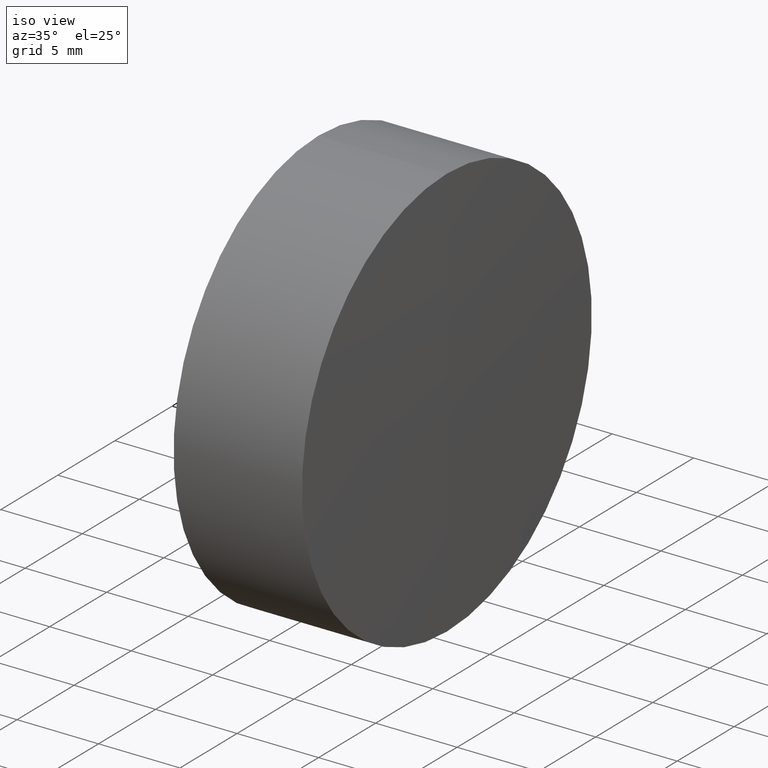
[diagram: clean part render]
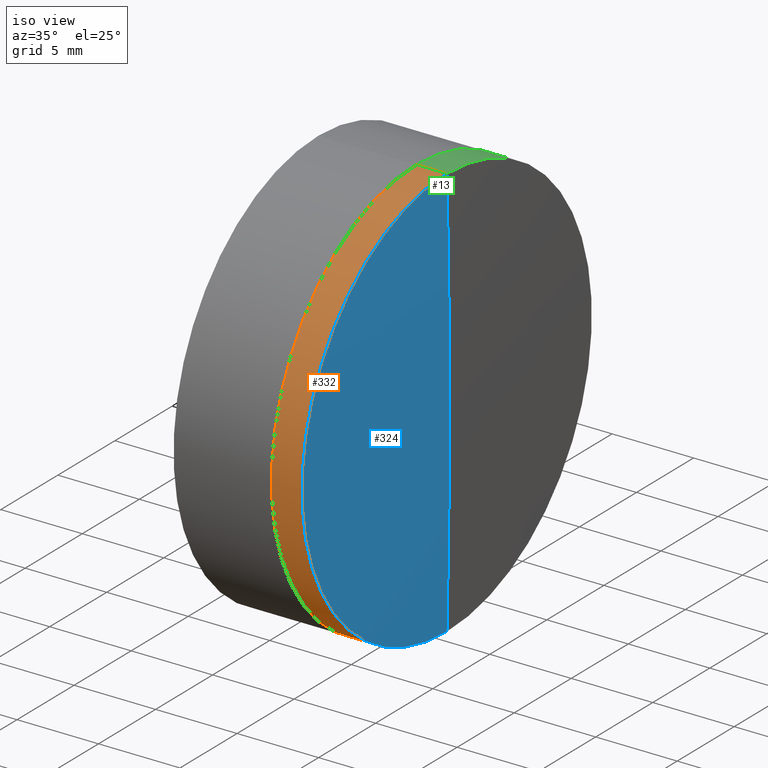
[diagram: same view with three faces highlighted in distinct colors, each labeled with its STEP entity id]
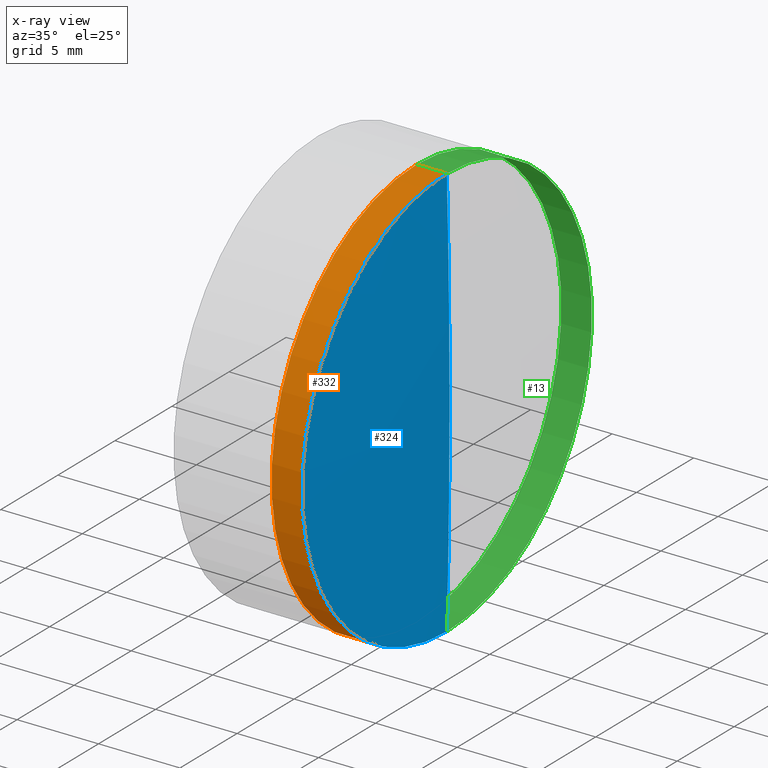
[diagram: x-ray of the same camera — body ghosted, the three highlighted faces saturated]
A machine part, iso view with three faces highlighted in distinct colors.
The next image is the same camera in x-ray (body ghosted, the three faces saturated) — at least one of them is partly hidden behind the body in this view.
Their STEP definitions:

[orange] entity #332 — the highlighted cylindrical surface (partial cylindrical patch) has radius 12.7 mm, axis along (-1, -0, -0).
#4 = CARTESIAN_POINT ( 'NONE',  ( 150.5048937077423800, 0.0000000000000000000, 12.69999999999996900 ) ) ;
#19 = VERTEX_POINT ( 'NONE', #115 ) ;
#46 = CIRCLE ( 'NONE', #52, 12.69999999999997100 ) ;
#48 = DIRECTION ( 'NONE',  ( -1.000000000000000000, -0.0000000000000000000, -0.0000000000000000000 ) ) ;
#52 = AXIS2_PLACEMENT_3D ( 'NONE', #57, #86, #295 ) ;
#57 = CARTESIAN_POINT ( 'NONE',  ( 150.5048937077423800, 0.0000000000000000000, 0.0000000000000000000 ) ) ;
#73 = LINE ( 'NONE', #152, #190 ) ;
#76 = CARTESIAN_POINT ( 'NONE',  ( 152.3694498868020200, 0.0000000000000000000, 0.0000000000000000000 ) ) ;
#86 = DIRECTION ( 'NONE',  ( -1.000000000000000000, -0.0000000000000000000, -0.0000000000000000000 ) ) ;
#100 = DIRECTION ( 'NONE',  ( -1.000000000000000000, -0.0000000000000000000, -0.0000000000000000000 ) ) ;
#101 = ORIENTED_EDGE ( 'NONE', *, *, #123, .F. ) ;
#108 = ORIENTED_EDGE ( 'NONE', *, *, #197, .T. ) ;
#115 = CARTESIAN_POINT ( 'NONE',  ( 152.3694498868020200, 0.0000000000000000000, 12.69999999999993700 ) ) ;
#121 = ORIENTED_EDGE ( 'NONE', *, *, #322, .F. ) ;
#123 = EDGE_CURVE ( 'NONE', #213, #146, #46, .T. ) ;
#125 = CARTESIAN_POINT ( 'NONE',  ( 144.4937671120052900, 0.0000000000000000000, 0.0000000000000000000 ) ) ;
#126 = CARTESIAN_POINT ( 'NONE',  ( 150.5048937077423800, 1.555301434917134700E-015, -12.70000000000002800 ) ) ;
#130 = VECTOR ( 'NONE', #290, 1000.000000000000000 ) ;
#139 = VERTEX_POINT ( 'NONE', #163 ) ;
#140 = LINE ( 'NONE', #180, #130 ) ;
#143 = DIRECTION ( 'NONE',  ( -1.000000000000000000, -0.0000000000000000000, -0.0000000000000000000 ) ) ;
#146 = VERTEX_POINT ( 'NONE', #4 ) ;
#147 = AXIS2_PLACEMENT_3D ( 'NONE', #76, #100, #278 ) ;
#152 = CARTESIAN_POINT ( 'NONE',  ( 144.4937671120052900, 0.0000000000000000000, 12.69999999999995500 ) ) ;
#163 = CARTESIAN_POINT ( 'NONE',  ( 152.3694498868020200, 1.555301434917131900E-015, -12.69999999999993700 ) ) ;
#168 = EDGE_CURVE ( 'NONE', #139, #19, #340, .T. ) ;
#180 = CARTESIAN_POINT ( 'NONE',  ( 144.4937671120052900, 1.555301434917132900E-015, -12.69999999999995500 ) ) ;
#182 = FACE_OUTER_BOUND ( 'NONE', #264, .T. ) ;
#190 = VECTOR ( 'NONE', #48, 1000.000000000000000 ) ;
#197 = EDGE_CURVE ( 'NONE', #19, #146, #73, .T. ) ;
#213 = VERTEX_POINT ( 'NONE', #126 ) ;
#254 = CYLINDRICAL_SURFACE ( 'NONE', #261, 12.69999999999995500 ) ;
#259 = ORIENTED_EDGE ( 'NONE', *, *, #168, .T. ) ;
#261 = AXIS2_PLACEMENT_3D ( 'NONE', #125, #143, #342 ) ;
#264 = EDGE_LOOP ( 'NONE', ( #121, #259, #108, #101 ) ) ;
#278 = DIRECTION ( 'NONE',  ( 0.0000000000000000000, 0.0000000000000000000, 1.000000000000000000 ) ) ;
#290 = DIRECTION ( 'NONE',  ( -1.000000000000000000, -0.0000000000000000000, -0.0000000000000000000 ) ) ;
#295 = DIRECTION ( 'NONE',  ( 0.0000000000000000000, 0.0000000000000000000, 1.000000000000000000 ) ) ;
#322 = EDGE_CURVE ( 'NONE', #139, #213, #140, .T. ) ;
#332 = ADVANCED_FACE ( 'NONE', ( #182 ), #254, .T. ) ;
#340 = CIRCLE ( 'NONE', #147, 12.69999999999993700 ) ;
#342 = DIRECTION ( 'NONE',  ( 0.0000000000000000000, 0.0000000000000000000, 1.000000000000000000 ) ) ;

[blue] entity #324 — the highlighted spherical surface has radius 494.3 mm.
#5 = EDGE_CURVE ( 'NONE', #44, #139, #275, .T. ) ;
#19 = VERTEX_POINT ( 'NONE', #115 ) ;
#26 = AXIS2_PLACEMENT_3D ( 'NONE', #280, #79, #260 ) ;
#39 = DIRECTION ( 'NONE',  ( 0.0000000000000000000, -1.224646799147353200E-016, 1.000000000000000000 ) ) ;
#44 = VERTEX_POINT ( 'NONE', #329 ) ;
#76 = CARTESIAN_POINT ( 'NONE',  ( 152.3694498868020200, 0.0000000000000000000, 0.0000000000000000000 ) ) ;
#77 = DIRECTION ( 'NONE',  ( 0.0000000000000000000, 0.0000000000000000000, 1.000000000000000000 ) ) ;
#79 = DIRECTION ( 'NONE',  ( 0.0000000000000000000, -1.000000000000000000, 0.0000000000000000000 ) ) ;
#84 = SPHERICAL_SURFACE ( 'NONE', #338, 494.2999999999999500 ) ;
#90 = AXIS2_PLACEMENT_3D ( 'NONE', #170, #116, #39 ) ;
#100 = DIRECTION ( 'NONE',  ( -1.000000000000000000, -0.0000000000000000000, -0.0000000000000000000 ) ) ;
#104 = ORIENTED_EDGE ( 'NONE', *, *, #164, .T. ) ;
#112 = ORIENTED_EDGE ( 'NONE', *, *, #5, .F. ) ;
#115 = CARTESIAN_POINT ( 'NONE',  ( 152.3694498868020200, 0.0000000000000000000, 12.69999999999993700 ) ) ;
#116 = DIRECTION ( 'NONE',  ( -0.0000000000000000000, 1.000000000000000000, 1.224646799147353200E-016 ) ) ;
#120 = CIRCLE ( 'NONE', #26, 494.2999999999999500 ) ;
#124 = CARTESIAN_POINT ( 'NONE',  ( -341.7673732705093200, 0.0000000000000000000, 0.0000000000000000000 ) ) ;
#139 = VERTEX_POINT ( 'NONE', #163 ) ;
#147 = AXIS2_PLACEMENT_3D ( 'NONE', #76, #100, #278 ) ;
#163 = CARTESIAN_POINT ( 'NONE',  ( 152.3694498868020200, 1.555301434917131900E-015, -12.69999999999993700 ) ) ;
#164 = EDGE_CURVE ( 'NONE', #44, #19, #120, .T. ) ;
#168 = EDGE_CURVE ( 'NONE', #139, #19, #340, .T. ) ;
#170 = CARTESIAN_POINT ( 'NONE',  ( -341.7673732705093200, 0.0000000000000000000, 0.0000000000000000000 ) ) ;
#201 = ORIENTED_EDGE ( 'NONE', *, *, #168, .F. ) ;
#212 = DIRECTION ( 'NONE',  ( 0.0000000000000000000, 1.000000000000000000, 0.0000000000000000000 ) ) ;
#231 = FACE_OUTER_BOUND ( 'NONE', #303, .T. ) ;
#260 = DIRECTION ( 'NONE',  ( 0.0000000000000000000, 0.0000000000000000000, -1.000000000000000000 ) ) ;
#275 = CIRCLE ( 'NONE', #90, 494.2999999999999500 ) ;
#278 = DIRECTION ( 'NONE',  ( 0.0000000000000000000, 0.0000000000000000000, 1.000000000000000000 ) ) ;
#280 = CARTESIAN_POINT ( 'NONE',  ( -341.7673732705093200, 0.0000000000000000000, 0.0000000000000000000 ) ) ;
#303 = EDGE_LOOP ( 'NONE', ( #112, #104, #201 ) ) ;
#324 = ADVANCED_FACE ( 'NONE', ( #231 ), #84, .T. ) ;
#329 = CARTESIAN_POINT ( 'NONE',  ( 152.5326267294906300, 0.0000000000000000000, 3.026714564092683200E-014 ) ) ;
#338 = AXIS2_PLACEMENT_3D ( 'NONE', #124, #212, #77 ) ;
#340 = CIRCLE ( 'NONE', #147, 12.69999999999993700 ) ;

[green] entity #13 — the highlighted cylindrical surface (partial cylindrical patch) has radius 12.7 mm, axis along (-1, -0, -0).
#3 = AXIS2_PLACEMENT_3D ( 'NONE', #50, #74, #339 ) ;
#4 = CARTESIAN_POINT ( 'NONE',  ( 150.5048937077423800, 0.0000000000000000000, 12.69999999999996900 ) ) ;
#10 = CARTESIAN_POINT ( 'NONE',  ( 144.4937671120052900, 0.0000000000000000000, 0.0000000000000000000 ) ) ;
#13 = ADVANCED_FACE ( 'NONE', ( #42 ), #155, .T. ) ;
#19 = VERTEX_POINT ( 'NONE', #115 ) ;
#32 = AXIS2_PLACEMENT_3D ( 'NONE', #10, #289, #61 ) ;
#42 = FACE_OUTER_BOUND ( 'NONE', #211, .T. ) ;
#48 = DIRECTION ( 'NONE',  ( -1.000000000000000000, -0.0000000000000000000, -0.0000000000000000000 ) ) ;
#50 = CARTESIAN_POINT ( 'NONE',  ( 150.5048937077423800, 0.0000000000000000000, 0.0000000000000000000 ) ) ;
#53 = ORIENTED_EDGE ( 'NONE', *, *, #83, .T. ) ;
#61 = DIRECTION ( 'NONE',  ( 0.0000000000000000000, 0.0000000000000000000, 1.000000000000000000 ) ) ;
#70 = ORIENTED_EDGE ( 'NONE', *, *, #322, .T. ) ;
#73 = LINE ( 'NONE', #152, #190 ) ;
#74 = DIRECTION ( 'NONE',  ( -1.000000000000000000, -0.0000000000000000000, -0.0000000000000000000 ) ) ;
#82 = DIRECTION ( 'NONE',  ( -1.000000000000000000, -0.0000000000000000000, -0.0000000000000000000 ) ) ;
#83 = EDGE_CURVE ( 'NONE', #19, #139, #277, .T. ) ;
#107 = DIRECTION ( 'NONE',  ( 0.0000000000000000000, 0.0000000000000000000, 1.000000000000000000 ) ) ;
#115 = CARTESIAN_POINT ( 'NONE',  ( 152.3694498868020200, 0.0000000000000000000, 12.69999999999993700 ) ) ;
#126 = CARTESIAN_POINT ( 'NONE',  ( 150.5048937077423800, 1.555301434917134700E-015, -12.70000000000002800 ) ) ;
#130 = VECTOR ( 'NONE', #290, 1000.000000000000000 ) ;
#139 = VERTEX_POINT ( 'NONE', #163 ) ;
#140 = LINE ( 'NONE', #180, #130 ) ;
#146 = VERTEX_POINT ( 'NONE', #4 ) ;
#152 = CARTESIAN_POINT ( 'NONE',  ( 144.4937671120052900, 0.0000000000000000000, 12.69999999999995500 ) ) ;
#155 = CYLINDRICAL_SURFACE ( 'NONE', #32, 12.69999999999995500 ) ;
#163 = CARTESIAN_POINT ( 'NONE',  ( 152.3694498868020200, 1.555301434917131900E-015, -12.69999999999993700 ) ) ;
#180 = CARTESIAN_POINT ( 'NONE',  ( 144.4937671120052900, 1.555301434917132900E-015, -12.69999999999995500 ) ) ;
#184 = EDGE_CURVE ( 'NONE', #146, #213, #237, .T. ) ;
#190 = VECTOR ( 'NONE', #48, 1000.000000000000000 ) ;
#197 = EDGE_CURVE ( 'NONE', #19, #146, #73, .T. ) ;
#211 = EDGE_LOOP ( 'NONE', ( #53, #70, #240, #292 ) ) ;
#213 = VERTEX_POINT ( 'NONE', #126 ) ;
#215 = AXIS2_PLACEMENT_3D ( 'NONE', #266, #82, #107 ) ;
#237 = CIRCLE ( 'NONE', #3, 12.69999999999997100 ) ;
#240 = ORIENTED_EDGE ( 'NONE', *, *, #184, .F. ) ;
#266 = CARTESIAN_POINT ( 'NONE',  ( 152.3694498868020200, 0.0000000000000000000, 0.0000000000000000000 ) ) ;
#277 = CIRCLE ( 'NONE', #215, 12.69999999999993700 ) ;
#289 = DIRECTION ( 'NONE',  ( -1.000000000000000000, -0.0000000000000000000, -0.0000000000000000000 ) ) ;
#290 = DIRECTION ( 'NONE',  ( -1.000000000000000000, -0.0000000000000000000, -0.0000000000000000000 ) ) ;
#292 = ORIENTED_EDGE ( 'NONE', *, *, #197, .F. ) ;
#322 = EDGE_CURVE ( 'NONE', #139, #213, #140, .T. ) ;
#339 = DIRECTION ( 'NONE',  ( 0.0000000000000000000, 0.0000000000000000000, 1.000000000000000000 ) ) ;